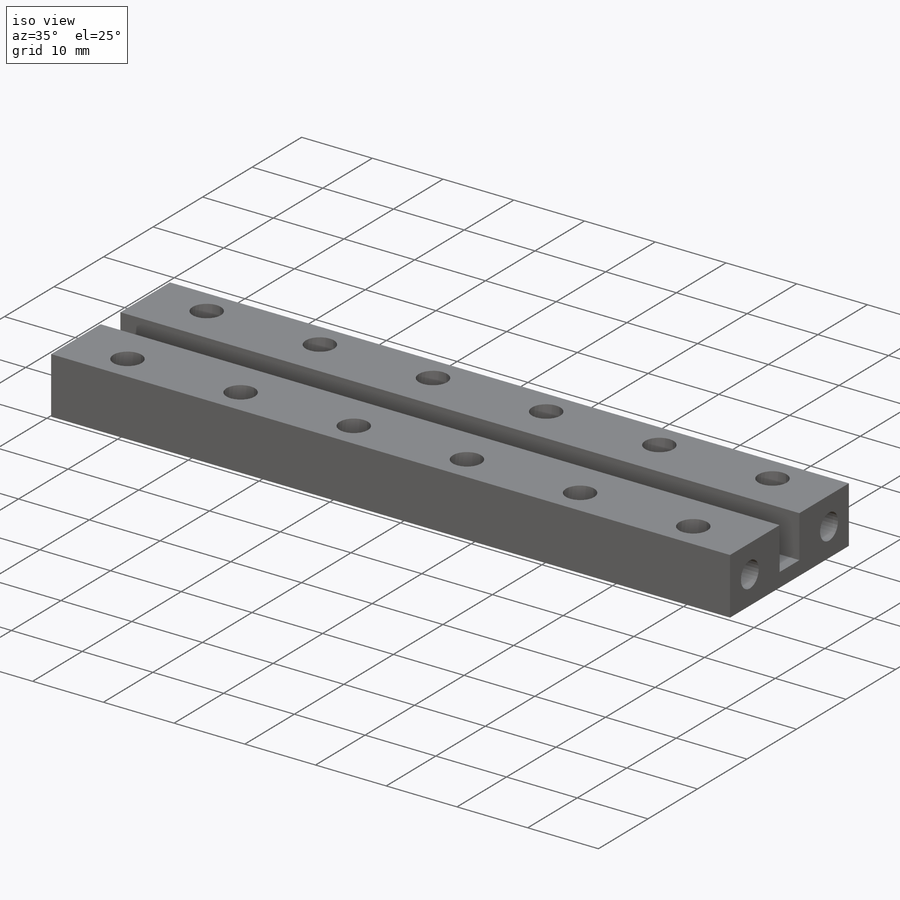
[diagram: iso view]
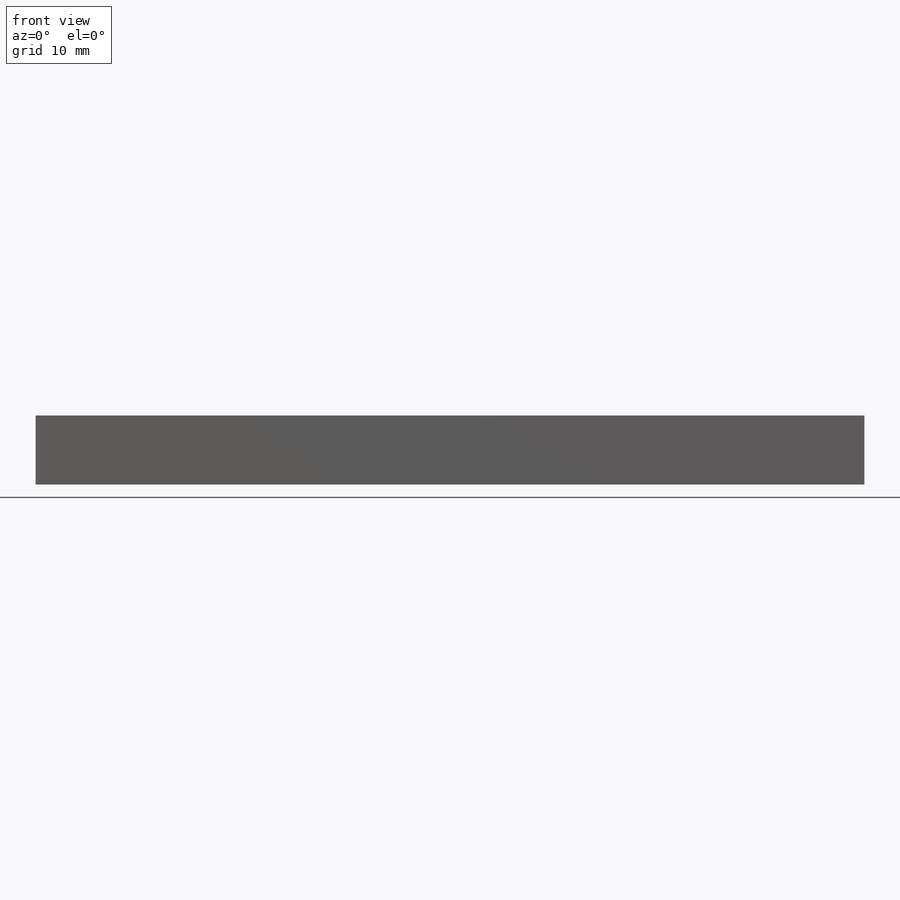
[diagram: front view]
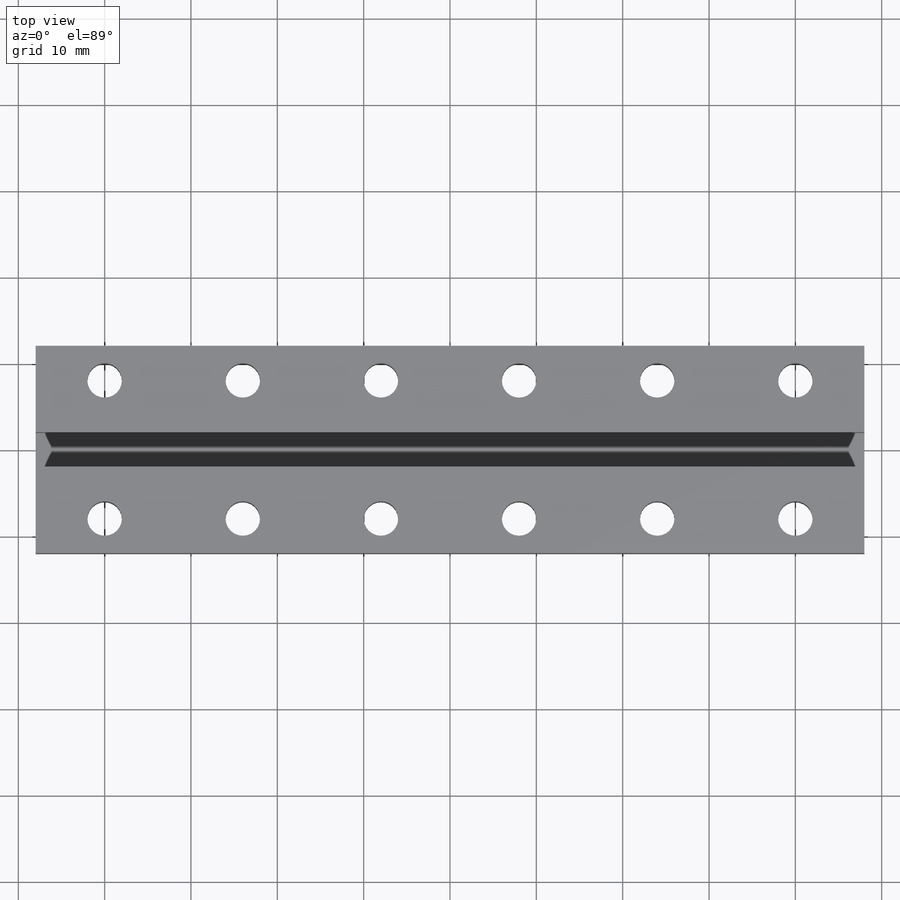
[diagram: top view]
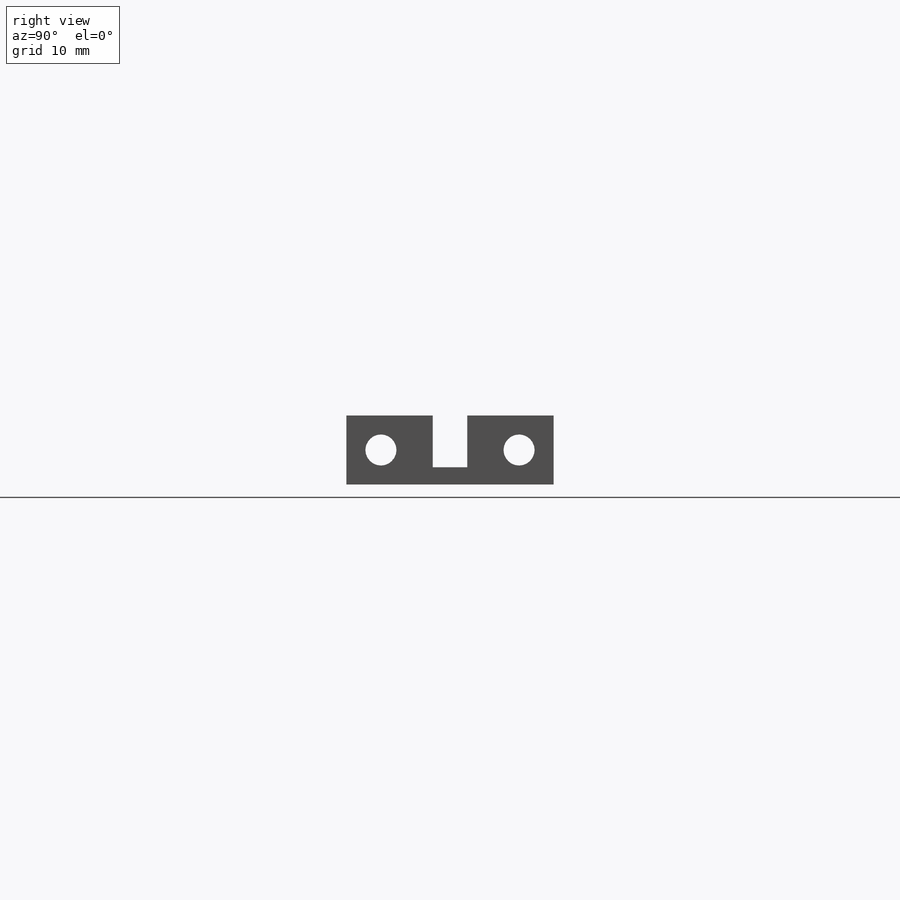
[diagram: right view]
SOLIDWORKS PART (.sldprt)
format: sldprt  version: not decoded by parser v0  size: 559,616 bytes
history: native  units: mm
features: sketch x4, cut_extrude x3, material x1, extrude x1 (+12 scaffold rows collapsed)
feature tree (21):
  scaffold x12  (default folders/planes/origin — collapsed)
  material  "재질 <지정안함>"
  sketch  "스케치1"  dims[D1=48.0mm D2=96.0mm D3=12.0mm D4=24.0mm]
  extrude  "보스-돌출1"  Depth=8mm
  sketch  "스케치2"  dims[D1=2.0mm D2=2.0mm]
  cut_extrude  "컷-돌출1"  Depth=6mm
  sketch  "스케치3"  dims[D4=~1.321338mm D1=4.0mm D2=8.0mm D3=8.0mm]
  cut_extrude  "컷-돌출2"  [1 undecoded]
  sketch  "스케치4"  dims[D9=~1.28763mm D1=8.0mm D2=16.0mm D3=16.0mm D4=16.0mm D5=16.0mm D6=16.0mm D7=8.0mm D8=8.0mm]
  cut_extrude  "컷-돌출3"  [1 undecoded]
decode coverage: 6 of 8 modeling features carry decoded parameters
note: ~ marks probable driven/reference dimensions
note: 2 parameter values undecoded
note: suppression state not decoded; provenance and decode notes live in map.json
